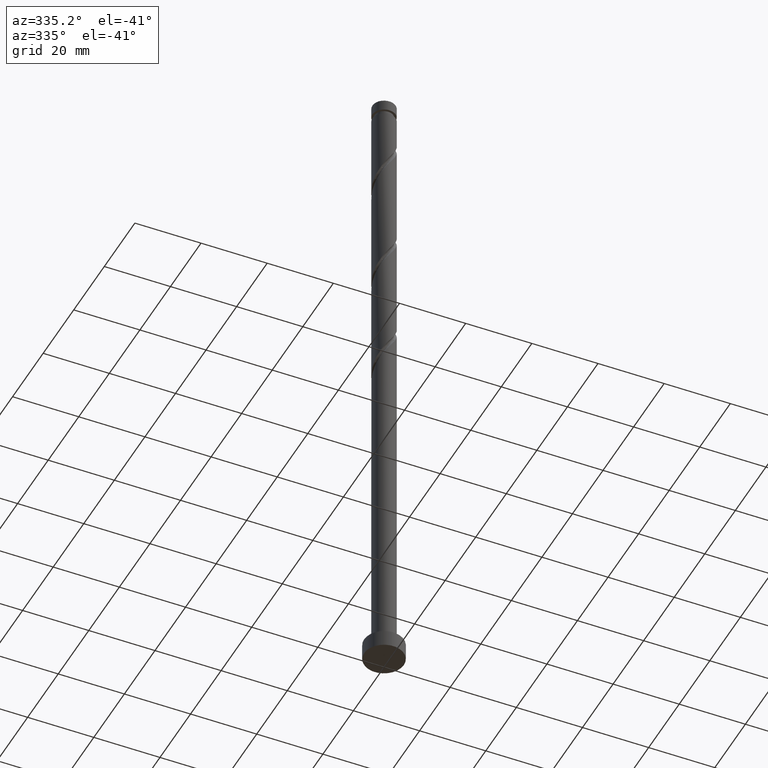
[diagram: clean part render]
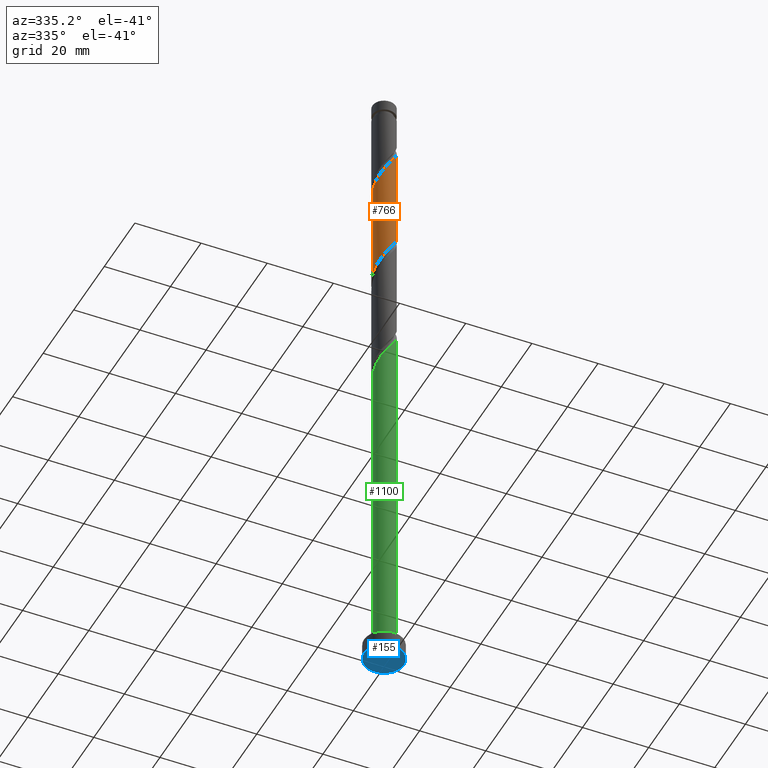
[diagram: same view with three faces highlighted in distinct colors, each labeled with its STEP entity id]
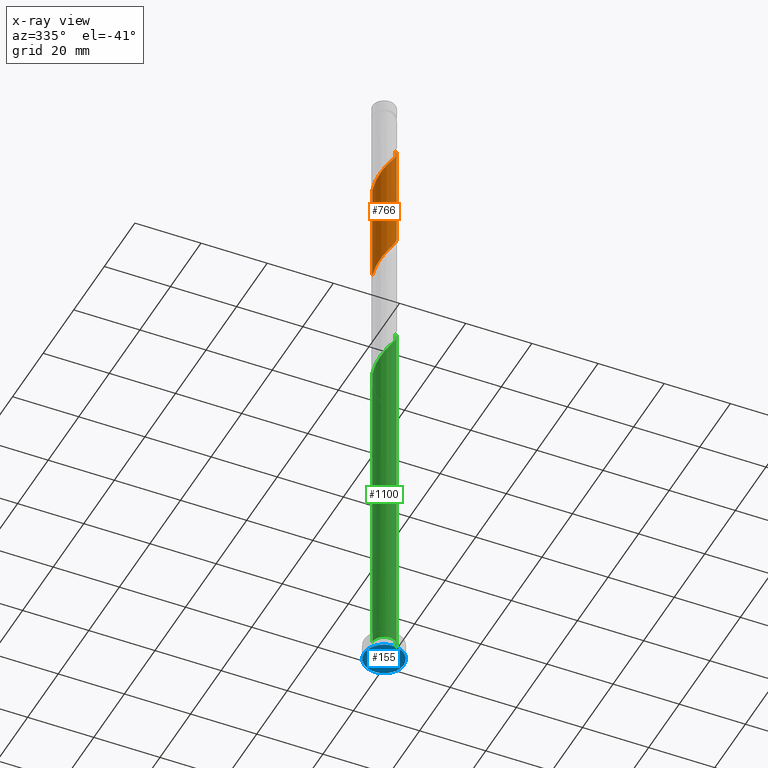
[diagram: x-ray of the same camera — body ghosted, the three highlighted faces saturated]
A machine part, auxiliary view with three faces highlighted in distinct colors.
The next image is the same camera in x-ray (body ghosted, the three faces saturated) — at least one of them is partly hidden behind the body in this view.
Their STEP definitions:

[orange] entity #766 — the highlighted cylindrical surface (edge-blend (fillet) strip) has radius 3.5 mm, axis along (-0, -0, -1).
#15 = CARTESIAN_POINT ( 'NONE',  ( -0.2149904810675286326, -3.493390773024166229, 177.3308404085577195 ) ) ;
#32 = CARTESIAN_POINT ( 'NONE',  ( -3.500000000000003109, -0.3517632353407299517, 169.8562556780924808 ) ) ;
#45 = CARTESIAN_POINT ( 'NONE',  ( -3.430000000000004601, -0.6964912059746356521, 170.3863959641132908 ) ) ;
#69 = CARTESIAN_POINT ( 'NONE',  ( -0.6964912059746356521, -3.429999999999999272, 145.3863959641132624 ) ) ;
#79 = CARTESIAN_POINT ( 'NONE',  ( 3.493390773024166229, -0.2149904810675305200, 185.6641737418910623 ) ) ;
#86 = CARTESIAN_POINT ( 'NONE',  ( -1.560508168335765999, -3.132860395318845192, 143.9975070752243766 ) ) ;
#102 = CARTESIAN_POINT ( 'NONE',  ( 1.548737742842088982, -3.172338736701778128, 148.8586181863354909 ) ) ;
#118 = EDGE_CURVE ( 'NONE', #791, #572, #241, .T. ) ;
#129 = FACE_OUTER_BOUND ( 'NONE', #433, .T. ) ;
#156 = CARTESIAN_POINT ( 'NONE',  ( 1.148059272699403000, -3.338305193185786557, 179.4141737418910054 ) ) ;
#161 = CARTESIAN_POINT ( 'NONE',  ( 3.338305193185780340, -1.148059272699406108, 153.0252848530021765 ) ) ;
#196 = CARTESIAN_POINT ( 'NONE',  ( -1.111820922113509580, -3.318712737967946413, 175.9419515196688053 ) ) ;
#197 = CARTESIAN_POINT ( 'NONE',  ( 2.622221531993305987, -2.318179077886495687, 150.9419515196688053 ) ) ;
#205 = CARTESIAN_POINT ( 'NONE',  ( 1.972957063972127889, -2.927415597451915374, 180.8030626307798912 ) ) ;
#216 = CARTESIAN_POINT ( 'NONE',  ( 3.318712737967946413, -1.111820922113509580, 184.2752848530022050 ) ) ;
#235 = CARTESIAN_POINT ( 'NONE',  ( -1.972957063972128777, -2.927415597451910045, 143.3030626307799196 ) ) ;
#241 =( BOUNDED_CURVE ( )  B_SPLINE_CURVE ( 2, ( #1652, #1678, #1556, #161, #441, #875, #197, #376, #1713, #102, #1449, #1586, #358, #1042, #69, #917, #86, #235, #1708, #1424, #1577, #900, #1181, #498, #1432, #773, #365 ),
 .UNSPECIFIED., .F., .T. ) 
 B_SPLINE_CURVE_WITH_KNOTS ( ( 3, 2, 2, 2, 2, 2, 2, 2, 2, 2, 2, 2, 2, 3 ),
 ( 0.5545317669814464612, 0.5625000000000000000, 0.5729166666666666297, 0.5833333333333333703, 0.5937500000000000000, 0.6041666666666666297, 0.6145833333333333703, 0.6250000000000000000, 0.6354166666666666297, 0.6458333333333333703, 0.6562500000000000000, 0.6666666666666666297, 0.6770833333333333703, 0.6795317669814465722 ),
 .UNSPECIFIED. ) 
 CURVE ( )  GEOMETRIC_REPRESENTATION_ITEM ( )  RATIONAL_B_SPLINE_CURVE ( ( 0.9062941362546423907, 0.9031415850403469170, 0.9090909090909222723, 0.9013135103398406400, 0.9090909090909222723, 0.9013135103398406400, 0.9090909090909222723, 0.9013135103398406400, 0.9090909090909222723, 0.9013135103398406400, 0.9090909090909222723, 0.9013135103398406400, 0.9090909090909222723, 0.9013135103398406400, 0.9090909090909222723, 0.9013135103398406400, 0.9090909090909222723, 0.9013135103398406400, 0.9090909090909222723, 0.9013135103398406400, 0.9090909090909222723, 0.9013135103398406400, 0.9090909090909222723, 0.9013135103398406400, 0.9090909090909222723, 0.9072628343904157733, 0.9062941362546423907 ) ) 
 REPRESENTATION_ITEM ( '' )  );
#258 = CARTESIAN_POINT ( 'NONE',  ( 2.917869914251322250, -1.932882604688401562, 182.8863959641132340 ) ) ;
#307 = CARTESIAN_POINT ( 'NONE',  ( -3.500000000000004441, -1.600054935467342436E-15, 169.3228293089032377 ) ) ;
#308 = EDGE_CURVE ( 'NONE', #466, #1268, #1210, .T. ) ;
#326 = CARTESIAN_POINT ( 'NONE',  ( -1.932882604688400674, -2.917869914251323582, 174.5530626307799764 ) ) ;
#339 = CARTESIAN_POINT ( 'NONE',  ( 3.500000000000000000, 4.286263797015736595E-16, 200.0000000000000000 ) ) ;
#344 = ORIENTED_EDGE ( 'NONE', *, *, #868, .F. ) ;
#358 = CARTESIAN_POINT ( 'NONE',  ( 0.2149904810675253575, -3.493390773024163121, 146.7752848530022050 ) ) ;
#365 = CARTESIAN_POINT ( 'NONE',  ( -3.500000000000000000, 4.411366410867935127E-15, 138.1166292859899727 ) ) ;
#376 = CARTESIAN_POINT ( 'NONE',  ( 2.317027466534702818, -2.663401091800861931, 150.2475070752243482 ) ) ;
#426 = CARTESIAN_POINT ( 'NONE',  ( 0.6964912059746353190, -3.430000000000004601, 178.7197292974466336 ) ) ;
#428 = CARTESIAN_POINT ( 'NONE',  ( 3.500000000000000000, 4.516042901973274995E-15, 154.7832959526566583 ) ) ;
#433 = EDGE_LOOP ( 'NONE', ( #344, #730, #762, #1463 ) ) ;
#435 = AXIS2_PLACEMENT_3D ( 'NONE', #577, #696, #1198 ) ;
#441 = CARTESIAN_POINT ( 'NONE',  ( 3.132860395318844748, -1.560508168335767332, 152.3308404085577479 ) ) ;
#466 = VERTEX_POINT ( 'NONE', #1019 ) ;
#469 = CARTESIAN_POINT ( 'NONE',  ( -2.622221531993310872, -2.318179077886496575, 173.1641737418910338 ) ) ;
#488 = CARTESIAN_POINT ( 'NONE',  ( 3.500000000000004441, -6.280589466320408853E-16, 185.9894959755698380 ) ) ;
#498 = CARTESIAN_POINT ( 'NONE',  ( -3.465086739234107149, -0.6749041013849204074, 139.1363959641132340 ) ) ;
#572 = VERTEX_POINT ( 'NONE', #1510 ) ;
#577 = CARTESIAN_POINT ( 'NONE',  ( 0.000000000000000000, 0.000000000000000000, 200.0000000000000000 ) ) ;
#664 = CARTESIAN_POINT ( 'NONE',  ( -3.500000000000000000, 0.000000000000000000, 200.0000000000000000 ) ) ;
#669 = CARTESIAN_POINT ( 'NONE',  ( 2.663401091800862375, -2.317027466534706814, 182.1919515196688053 ) ) ;
#692 = LINE ( 'NONE', #664, #1075 ) ;
#696 = DIRECTION ( 'NONE',  ( -0.000000000000000000, -0.000000000000000000, -1.000000000000000000 ) ) ;
#721 = CARTESIAN_POINT ( 'NONE',  ( -2.927415597451914930, -1.972957063972128777, 172.4697292974465768 ) ) ;
#730 = ORIENTED_EDGE ( 'NONE', *, *, #308, .F. ) ;
#733 = LINE ( 'NONE', #339, #1110 ) ;
#756 = CARTESIAN_POINT ( 'NONE',  ( 3.465086739234110258, -0.6749041013849248483, 184.9697292974465483 ) ) ;
#762 = ORIENTED_EDGE ( 'NONE', *, *, #1173, .T. ) ;
#766 = ADVANCED_FACE ( 'NONE', ( #129 ), #1345, .T. ) ;
#773 = CARTESIAN_POINT ( 'NONE',  ( -3.500000000000000444, -0.1075968308018441094, 138.2797929740181360 ) ) ;
#791 = VERTEX_POINT ( 'NONE', #428 ) ;
#836 = CARTESIAN_POINT ( 'NONE',  ( -0.6749041013849230719, -3.465086739234110702, 176.6363959641132340 ) ) ;
#868 = EDGE_CURVE ( 'NONE', #1268, #791, #733, .T. ) ;
#873 = CARTESIAN_POINT ( 'NONE',  ( -1.548737742842092979, -3.172338736701781237, 175.2475070752243198 ) ) ;
#875 = CARTESIAN_POINT ( 'NONE',  ( 2.927415597451909157, -1.972957063972129665, 151.6363959641132908 ) ) ;
#900 = CARTESIAN_POINT ( 'NONE',  ( -3.172338736701778128, -1.548737742842088982, 140.5252848530021197 ) ) ;
#917 = CARTESIAN_POINT ( 'NONE',  ( -1.148059272699404554, -3.338305193185781672, 144.6919515196688337 ) ) ;
#935 = CARTESIAN_POINT ( 'NONE',  ( 3.172338736701780793, -1.548737742842093201, 183.5808404085576626 ) ) ;
#980 = CARTESIAN_POINT ( 'NONE',  ( 1.560508168335765777, -3.132860395318851410, 180.1086181863355193 ) ) ;
#1019 = CARTESIAN_POINT ( 'NONE',  ( -3.500000000000004441, -1.600054935467342436E-15, 169.3228293089032377 ) ) ;
#1042 = CARTESIAN_POINT ( 'NONE',  ( -0.2449231392498684989, -3.521694806814218648, 146.0808404085576910 ) ) ;
#1075 = VECTOR ( 'NONE', #1088, 1000.000000000000000 ) ;
#1088 = DIRECTION ( 'NONE',  ( -0.000000000000000000, -0.000000000000000000, -1.000000000000000000 ) ) ;
#1110 = VECTOR ( 'NONE', #1669, 1000.000000000000000 ) ;
#1127 = CARTESIAN_POINT ( 'NONE',  ( 3.500000000000004441, -6.280589466320408853E-16, 185.9894959755698665 ) ) ;
#1163 = CARTESIAN_POINT ( 'NONE',  ( 2.318179077886497019, -2.622221531993311316, 181.4975070752243482 ) ) ;
#1173 = EDGE_CURVE ( 'NONE', #466, #572, #692, .T. ) ;
#1181 = CARTESIAN_POINT ( 'NONE',  ( -3.318712737967942861, -1.111820922113504695, 139.8308404085576910 ) ) ;
#1198 = DIRECTION ( 'NONE',  ( -1.000000000000000000, 0.000000000000000000, 0.000000000000000000 ) ) ;
#1210 =( BOUNDED_CURVE ( )  B_SPLINE_CURVE ( 2, ( #307, #32, #45, #1514, #1674, #721, #469, #1544, #326, #873, #196, #836, #15, #1649, #426, #156, #980, #205, #1163, #669, #258, #935, #216, #756, #79, #1279, #488 ),
 .UNSPECIFIED., .F., .T. ) 
 B_SPLINE_CURVE_WITH_KNOTS ( ( 3, 2, 2, 2, 2, 2, 2, 2, 2, 2, 2, 2, 2, 3 ),
 ( 0.5545317669814463502, 0.5625000000000000000, 0.5729166666666667407, 0.5833333333333332593, 0.5937500000000000000, 0.6041666666666667407, 0.6145833333333332593, 0.6250000000000000000, 0.6354166666666667407, 0.6458333333333332593, 0.6562500000000000000, 0.6666666666666667407, 0.6770833333333332593, 0.6795317669814461281 ),
 .UNSPECIFIED. ) 
 CURVE ( )  GEOMETRIC_REPRESENTATION_ITEM ( )  RATIONAL_B_SPLINE_CURVE ( ( 0.9062941362546482749, 0.9031415850403528012, 0.9090909090909279344, 0.9013135103398465242, 0.9090909090909279344, 0.9013135103398465242, 0.9090909090909279344, 0.9013135103398465242, 0.9090909090909279344, 0.9013135103398465242, 0.9090909090909279344, 0.9013135103398465242, 0.9090909090909279344, 0.9013135103398465242, 0.9090909090909279344, 0.9013135103398465242, 0.9090909090909279344, 0.9013135103398465242, 0.9090909090909279344, 0.9013135103398465242, 0.9090909090909279344, 0.9013135103398465242, 0.9090909090909279344, 0.9013135103398465242, 0.9090909090909279344, 0.9072628343904218795, 0.9062941362546484969 ) ) 
 REPRESENTATION_ITEM ( '' )  );
#1268 = VERTEX_POINT ( 'NONE', #1127 ) ;
#1279 = CARTESIAN_POINT ( 'NONE',  ( 3.500000000000003997, -0.1075968308018639963, 185.8263322875417032 ) ) ;
#1345 = CYLINDRICAL_SURFACE ( 'NONE', #435, 3.500000000000000000 ) ;
#1424 = CARTESIAN_POINT ( 'NONE',  ( -2.663401091800862375, -2.317027466534702818, 141.9141737418910054 ) ) ;
#1432 = CARTESIAN_POINT ( 'NONE',  ( -3.493390773024163121, -0.2149904810675264399, 138.4419515196688337 ) ) ;
#1449 = CARTESIAN_POINT ( 'NONE',  ( 1.111820922113504473, -3.318712737967942861, 148.1641737418910054 ) ) ;
#1463 = ORIENTED_EDGE ( 'NONE', *, *, #118, .F. ) ;
#1510 = CARTESIAN_POINT ( 'NONE',  ( -3.500000000000000000, 4.411366410867935127E-15, 138.1166292859899727 ) ) ;
#1514 = CARTESIAN_POINT ( 'NONE',  ( -3.338305193185786557, -1.148059272699403000, 171.0808404085576342 ) ) ;
#1544 = CARTESIAN_POINT ( 'NONE',  ( -2.317027466534706814, -2.663401091800862375, 173.8586181863353772 ) ) ;
#1556 = CARTESIAN_POINT ( 'NONE',  ( 3.429999999999999272, -0.6964912059746357631, 153.7197292974466336 ) ) ;
#1577 = CARTESIAN_POINT ( 'NONE',  ( -2.917869914251319141, -1.932882604688396455, 141.2197292974465768 ) ) ;
#1586 = CARTESIAN_POINT ( 'NONE',  ( 0.6749041013849192971, -3.465086739234107593, 147.4697292974466052 ) ) ;
#1649 = CARTESIAN_POINT ( 'NONE',  ( 0.2449231392498658899, -3.521694806814221756, 178.0252848530021481 ) ) ;
#1652 = CARTESIAN_POINT ( 'NONE',  ( 3.500000000000000000, 4.516042901973274995E-15, 154.7832959526566583 ) ) ;
#1669 = DIRECTION ( 'NONE',  ( -0.000000000000000000, -0.000000000000000000, -1.000000000000000000 ) ) ;
#1674 = CARTESIAN_POINT ( 'NONE',  ( -3.132860395318850522, -1.560508168335767110, 171.7752848530021481 ) ) ;
#1678 = CARTESIAN_POINT ( 'NONE',  ( 3.499999999999999556, -0.3517632353407326717, 154.2498695834674152 ) ) ;
#1708 = CARTESIAN_POINT ( 'NONE',  ( -2.318179077886495687, -2.622221531993305987, 142.6086181863354625 ) ) ;
#1713 = CARTESIAN_POINT ( 'NONE',  ( 1.932882604688394901, -2.917869914251320029, 149.5530626307799480 ) ) ;

[blue] entity #155 — the highlighted planar face has unit normal (0, 0, 1).
#155 = ADVANCED_FACE ( 'NONE', ( #209 ), #229, .F. ) ;
#206 = AXIS2_PLACEMENT_3D ( 'NONE', #1371, #1120, #1521 ) ;
#209 = FACE_OUTER_BOUND ( 'NONE', #1116, .T. ) ;
#229 = PLANE ( 'NONE',  #663 ) ;
#302 = CARTESIAN_POINT ( 'NONE',  ( 0.000000000000000000, 0.000000000000000000, 0.000000000000000000 ) ) ;
#359 = DIRECTION ( 'NONE',  ( 1.000000000000000000, 0.000000000000000000, 0.000000000000000000 ) ) ;
#397 = AXIS2_PLACEMENT_3D ( 'NONE', #302, #1442, #359 ) ;
#398 = VERTEX_POINT ( 'NONE', #1035 ) ;
#628 = DIRECTION ( 'NONE',  ( 0.000000000000000000, 0.000000000000000000, 1.000000000000000000 ) ) ;
#663 = AXIS2_PLACEMENT_3D ( 'NONE', #1282, #628, #781 ) ;
#781 = DIRECTION ( 'NONE',  ( 1.000000000000000000, 0.000000000000000000, -0.000000000000000000 ) ) ;
#939 = CIRCLE ( 'NONE', #206, 6.000000000000000888 ) ;
#1035 = CARTESIAN_POINT ( 'NONE',  ( -6.000000000000000888, 0.000000000000000000, 0.000000000000000000 ) ) ;
#1116 = EDGE_LOOP ( 'NONE', ( #1183, #1506 ) ) ;
#1120 = DIRECTION ( 'NONE',  ( 0.000000000000000000, 0.000000000000000000, 1.000000000000000000 ) ) ;
#1183 = ORIENTED_EDGE ( 'NONE', *, *, #1300, .F. ) ;
#1258 = VERTEX_POINT ( 'NONE', #1261 ) ;
#1261 = CARTESIAN_POINT ( 'NONE',  ( 6.000000000000000888, 7.347880794884120722E-16, 0.000000000000000000 ) ) ;
#1282 = CARTESIAN_POINT ( 'NONE',  ( 0.000000000000000000, 0.000000000000000000, 0.000000000000000000 ) ) ;
#1300 = EDGE_CURVE ( 'NONE', #398, #1258, #939, .T. ) ;
#1371 = CARTESIAN_POINT ( 'NONE',  ( 0.000000000000000000, 0.000000000000000000, 0.000000000000000000 ) ) ;
#1442 = DIRECTION ( 'NONE',  ( 0.000000000000000000, 0.000000000000000000, 1.000000000000000000 ) ) ;
#1506 = ORIENTED_EDGE ( 'NONE', *, *, #1597, .F. ) ;
#1521 = DIRECTION ( 'NONE',  ( 1.000000000000000000, 0.000000000000000000, 0.000000000000000000 ) ) ;
#1534 = CIRCLE ( 'NONE', #397, 6.000000000000000888 ) ;
#1597 = EDGE_CURVE ( 'NONE', #1258, #398, #1534, .T. ) ;

[green] entity #1100 — the highlighted cylindrical surface (edge-blend (fillet) strip) has radius 3.5 mm, axis along (-0, -0, -1).
#4 = CARTESIAN_POINT ( 'NONE',  ( 0.000000000000000000, 0.000000000000000000, 200.0000000000000000 ) ) ;
#21 = CARTESIAN_POINT ( 'NONE',  ( -3.500000000000004441, -2.736542553182464498E-15, 102.6561626422365237 ) ) ;
#39 = CARTESIAN_POINT ( 'NONE',  ( -2.622221531993310872, -2.318179077886496575, 106.4975070752243766 ) ) ;
#62 = CARTESIAN_POINT ( 'NONE',  ( 1.560508168335765777, -3.132860395318851410, 113.4419515196688195 ) ) ;
#75 = CARTESIAN_POINT ( 'NONE',  ( 3.500000000000003553, -0.1075968308018652869, 119.1596656208750176 ) ) ;
#173 = CARTESIAN_POINT ( 'NONE',  ( -1.548737742842092979, -3.172338736701781237, 108.5808404085576768 ) ) ;
#179 = DIRECTION ( 'NONE',  ( 0.000000000000000000, 0.000000000000000000, 1.000000000000000000 ) ) ;
#185 = CARTESIAN_POINT ( 'NONE',  ( 3.172338736701780793, -1.548737742842093201, 116.9141737418910196 ) ) ;
#230 = AXIS2_PLACEMENT_3D ( 'NONE', #316, #179, #738 ) ;
#254 = AXIS2_PLACEMENT_3D ( 'NONE', #4, #1098, #427 ) ;
#263 = ORIENTED_EDGE ( 'NONE', *, *, #645, .F. ) ;
#311 = CARTESIAN_POINT ( 'NONE',  ( -3.338305193185786557, -1.148059272699403000, 104.4141737418910054 ) ) ;
#316 = CARTESIAN_POINT ( 'NONE',  ( 0.000000000000000000, 0.000000000000000000, 5.000000000000000000 ) ) ;
#327 = DIRECTION ( 'NONE',  ( -0.000000000000000000, -0.000000000000000000, -1.000000000000000000 ) ) ;
#333 = CARTESIAN_POINT ( 'NONE',  ( 3.318712737967946413, -1.111820922113509580, 117.6086181863354767 ) ) ;
#342 = CARTESIAN_POINT ( 'NONE',  ( -1.111820922113509580, -3.318712737967946413, 109.2752848530021765 ) ) ;
#377 = VECTOR ( 'NONE', #327, 1000.000000000000000 ) ;
#427 = DIRECTION ( 'NONE',  ( -1.000000000000000000, 0.000000000000000000, 0.000000000000000000 ) ) ;
#434 = DIRECTION ( 'NONE',  ( -0.000000000000000000, -0.000000000000000000, -1.000000000000000000 ) ) ;
#454 = CARTESIAN_POINT ( 'NONE',  ( 2.917869914251322250, -1.932882604688401562, 116.2197292974466336 ) ) ;
#463 = CARTESIAN_POINT ( 'NONE',  ( -2.927415597451914930, -1.972957063972128777, 105.8030626307799196 ) ) ;
#478 = CARTESIAN_POINT ( 'NONE',  ( -3.500000000000000000, 0.000000000000000000, 200.0000000000000000 ) ) ;
#482 = EDGE_CURVE ( 'NONE', #1226, #768, #1156, .T. ) ;
#565 = CYLINDRICAL_SURFACE ( 'NONE', #254, 3.500000000000000000 ) ;
#581 = CARTESIAN_POINT ( 'NONE',  ( -3.500000000000005773, -0.3517632353407209034, 103.1895890114257810 ) ) ;
#590 = CARTESIAN_POINT ( 'NONE',  ( 0.2449231392498658899, -3.521694806814221756, 111.3586181863354341 ) ) ;
#598 = CARTESIAN_POINT ( 'NONE',  ( 1.972957063972127889, -2.927415597451915374, 114.1363959641132055 ) ) ;
#604 = CARTESIAN_POINT ( 'NONE',  ( -3.500000000000000000, 0.000000000000000000, 5.000000000000000000 ) ) ;
#621 = CARTESIAN_POINT ( 'NONE',  ( 2.318179077886497019, -2.622221531993311316, 114.8308404085576910 ) ) ;
#645 = EDGE_CURVE ( 'NONE', #746, #1226, #1033, .T. ) ;
#676 = CARTESIAN_POINT ( 'NONE',  ( -3.500000000000004441, -2.736542553182464498E-15, 102.6561626422365237 ) ) ;
#710 = LINE ( 'NONE', #478, #377 ) ;
#728 = CARTESIAN_POINT ( 'NONE',  ( -1.932882604688400674, -2.917869914251323582, 107.8863959641132766 ) ) ;
#735 = CARTESIAN_POINT ( 'NONE',  ( 3.465086739234110258, -0.6749041013849248483, 118.3030626307799054 ) ) ;
#738 = DIRECTION ( 'NONE',  ( 1.000000000000000000, 0.000000000000000000, 0.000000000000000000 ) ) ;
#746 = VERTEX_POINT ( 'NONE', #676 ) ;
#768 = VERTEX_POINT ( 'NONE', #1492 ) ;
#860 = CARTESIAN_POINT ( 'NONE',  ( 2.663401091800862375, -2.317027466534706814, 115.5252848530020913 ) ) ;
#1015 = CARTESIAN_POINT ( 'NONE',  ( 3.500000000000004441, 5.532900244139408950E-16, 119.3228293089031808 ) ) ;
#1025 = CARTESIAN_POINT ( 'NONE',  ( 1.148059272699403000, -3.338305193185786557, 112.7475070752243482 ) ) ;
#1033 =( BOUNDED_CURVE ( )  B_SPLINE_CURVE ( 2, ( #21, #581, #1527, #311, #1255, #463, #39, #1377, #728, #173, #342, #1388, #1246, #590, #1663, #1025, #62, #598, #621, #860, #454, #185, #333, #735, #1130, #75, #1015 ),
 .UNSPECIFIED., .F., .T. ) 
 B_SPLINE_CURVE_WITH_KNOTS ( ( 3, 2, 2, 2, 2, 2, 2, 2, 2, 2, 2, 2, 2, 3 ),
 ( 0.05453176698144622525, 0.06250000000000000000, 0.07291666666666662966, 0.08333333333333337034, 0.09375000000000000000, 0.1041666666666666297, 0.1145833333333333703, 0.1250000000000000000, 0.1354166666666666297, 0.1458333333333333703, 0.1562500000000000000, 0.1666666666666666297, 0.1770833333333333703, 0.1795317669814461836 ),
 .UNSPECIFIED. ) 
 CURVE ( )  GEOMETRIC_REPRESENTATION_ITEM ( )  RATIONAL_B_SPLINE_CURVE ( ( 0.9062941362546482749, 0.9031415850403525791, 0.9090909090909279344, 0.9013135103398465242, 0.9090909090909279344, 0.9013135103398465242, 0.9090909090909279344, 0.9013135103398465242, 0.9090909090909279344, 0.9013135103398465242, 0.9090909090909279344, 0.9013135103398465242, 0.9090909090909279344, 0.9013135103398465242, 0.9090909090909279344, 0.9013135103398465242, 0.9090909090909279344, 0.9013135103398465242, 0.9090909090909279344, 0.9013135103398465242, 0.9090909090909279344, 0.9013135103398465242, 0.9090909090909279344, 0.9013135103398465242, 0.9090909090909279344, 0.9072628343904218795, 0.9062941362546484969 ) ) 
 REPRESENTATION_ITEM ( '' )  );
#1098 = DIRECTION ( 'NONE',  ( -0.000000000000000000, -0.000000000000000000, -1.000000000000000000 ) ) ;
#1100 = ADVANCED_FACE ( 'NONE', ( #1225 ), #565, .T. ) ;
#1130 = CARTESIAN_POINT ( 'NONE',  ( 3.493390773024166229, -0.2149904810675305200, 118.9975070752243766 ) ) ;
#1137 = VECTOR ( 'NONE', #434, 1000.000000000000000 ) ;
#1156 = LINE ( 'NONE', #1694, #1137 ) ;
#1191 = EDGE_CURVE ( 'NONE', #1249, #768, #1352, .T. ) ;
#1224 = EDGE_CURVE ( 'NONE', #746, #1249, #710, .T. ) ;
#1225 = FACE_OUTER_BOUND ( 'NONE', #1287, .T. ) ;
#1226 = VERTEX_POINT ( 'NONE', #1650 ) ;
#1246 = CARTESIAN_POINT ( 'NONE',  ( -0.2149904810675286326, -3.493390773024166229, 110.6641737418910481 ) ) ;
#1249 = VERTEX_POINT ( 'NONE', #604 ) ;
#1255 = CARTESIAN_POINT ( 'NONE',  ( -3.132860395318850522, -1.560508168335767110, 105.1086181863354909 ) ) ;
#1287 = EDGE_LOOP ( 'NONE', ( #1321, #263, #1700, #1661 ) ) ;
#1321 = ORIENTED_EDGE ( 'NONE', *, *, #482, .F. ) ;
#1352 = CIRCLE ( 'NONE', #230, 3.500000000000000000 ) ;
#1377 = CARTESIAN_POINT ( 'NONE',  ( -2.317027466534706814, -2.663401091800862375, 107.1919515196687769 ) ) ;
#1388 = CARTESIAN_POINT ( 'NONE',  ( -0.6749041013849230719, -3.465086739234110702, 109.9697292974465626 ) ) ;
#1492 = CARTESIAN_POINT ( 'NONE',  ( 3.500000000000000000, 4.286263797015736595E-16, 5.000000000000000000 ) ) ;
#1527 = CARTESIAN_POINT ( 'NONE',  ( -3.430000000000004601, -0.6964912059746356521, 103.7197292974465910 ) ) ;
#1650 = CARTESIAN_POINT ( 'NONE',  ( 3.500000000000004441, 5.532900244139408950E-16, 119.3228293089031808 ) ) ;
#1661 = ORIENTED_EDGE ( 'NONE', *, *, #1191, .T. ) ;
#1663 = CARTESIAN_POINT ( 'NONE',  ( 0.6964912059746353190, -3.430000000000004601, 112.0530626307799196 ) ) ;
#1694 = CARTESIAN_POINT ( 'NONE',  ( 3.500000000000000000, 4.286263797015736595E-16, 200.0000000000000000 ) ) ;
#1700 = ORIENTED_EDGE ( 'NONE', *, *, #1224, .T. ) ;